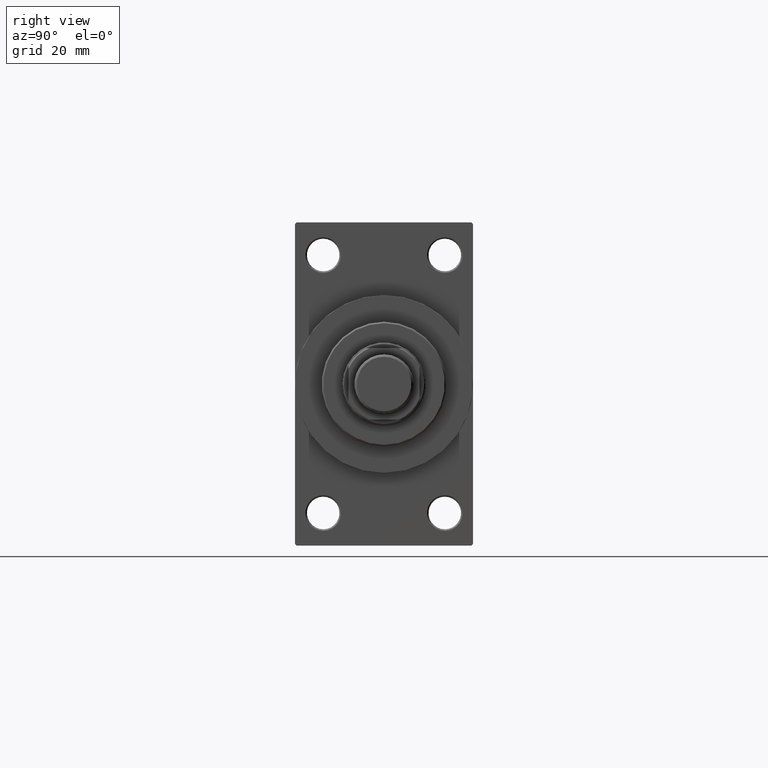
[diagram: clean part render]
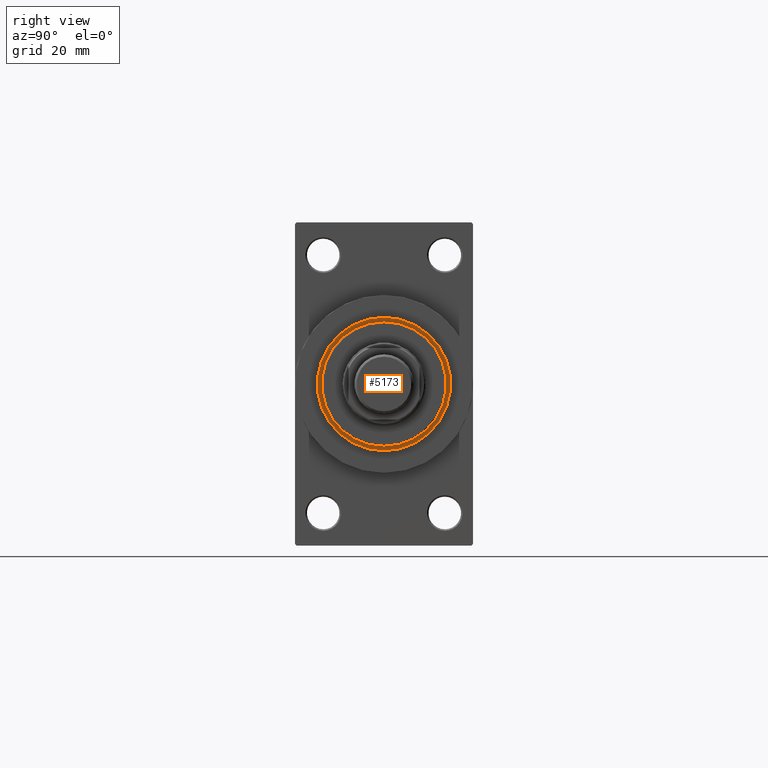
[diagram: same view with one face highlighted and labeled with its STEP entity id]
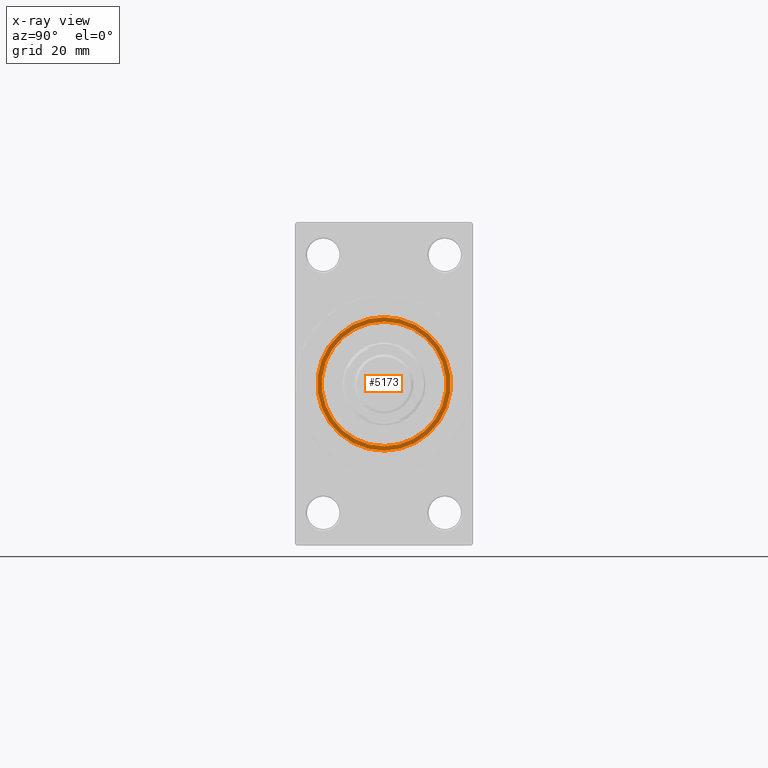
[diagram: x-ray of the same camera — body ghosted, the highlighted face saturated]
A machine part, right view. The second image highlights one B-rep face of the part: STEP entity #5173.
The next image is the same camera in x-ray: the body ghosted, the highlighted face saturated — about 0% of this face is hidden behind the body in this view.
In plain terms, the highlighted planar face has unit normal (1, -0, -0).
Its self-contained STEP definition (entity closure, byte-faithful):
#749 = EDGE_CURVE ( 'NONE', #41775, #42301, #6179, .T. ) ;
#1861 = CIRCLE ( 'NONE', #14945, 22.50000000000000355 ) ;
#5173 = ADVANCED_FACE ( 'NONE', ( #6198, #20892 ), #17293, .T. ) ;
#5519 = ORIENTED_EDGE ( 'NONE', *, *, #10697, .F. ) ;
#6179 = CIRCLE ( 'NONE', #10039, 21.00000000000000000 ) ;
#6198 = FACE_BOUND ( 'NONE', #41076, .T. ) ;
#6264 = DIRECTION ( 'NONE',  ( 1.000000000000000000, 0.000000000000000000, 0.000000000000000000 ) ) ;
#8879 = DIRECTION ( 'NONE',  ( 0.000000000000000000, 0.000000000000000000, 1.000000000000000000 ) ) ;
#10039 = AXIS2_PLACEMENT_3D ( 'NONE', #41461, #23343, #26260 ) ;
#10291 = CARTESIAN_POINT ( 'NONE',  ( 22.50000000000000355, 2.755455298081545172E-15, 43.25999999999999801 ) ) ;
#10697 = EDGE_CURVE ( 'NONE', #42301, #41775, #11766, .T. ) ;
#11718 = CARTESIAN_POINT ( 'NONE',  ( 21.00000000000000000, 2.571758278209441661E-15, 43.25999999999999801 ) ) ;
#11766 = CIRCLE ( 'NONE', #17153, 21.00000000000000000 ) ;
#11864 = CIRCLE ( 'NONE', #24186, 22.50000000000000355 ) ;
#13530 = EDGE_LOOP ( 'NONE', ( #43491, #22218 ) ) ;
#13562 = EDGE_CURVE ( 'NONE', #28320, #25230, #11864, .T. ) ;
#14945 = AXIS2_PLACEMENT_3D ( 'NONE', #23481, #37512, #38207 ) ;
#16906 = ORIENTED_EDGE ( 'NONE', *, *, #749, .F. ) ;
#17153 = AXIS2_PLACEMENT_3D ( 'NONE', #28708, #32563, #6264 ) ;
#17293 = PLANE ( 'NONE',  #25572 ) ;
#19947 = DIRECTION ( 'NONE',  ( 1.000000000000000000, 0.000000000000000000, -0.000000000000000000 ) ) ;
#20890 = DIRECTION ( 'NONE',  ( 1.000000000000000000, 0.000000000000000000, 0.000000000000000000 ) ) ;
#20892 = FACE_OUTER_BOUND ( 'NONE', #13530, .T. ) ;
#21717 = CARTESIAN_POINT ( 'NONE',  ( -21.00000000000000000, 0.000000000000000000, 43.25999999999999801 ) ) ;
#22156 = EDGE_CURVE ( 'NONE', #25230, #28320, #1861, .T. ) ;
#22218 = ORIENTED_EDGE ( 'NONE', *, *, #13562, .T. ) ;
#22596 = CARTESIAN_POINT ( 'NONE',  ( -22.50000000000000355, 0.000000000000000000, 43.25999999999999801 ) ) ;
#23343 = DIRECTION ( 'NONE',  ( 0.000000000000000000, 0.000000000000000000, 1.000000000000000000 ) ) ;
#23481 = CARTESIAN_POINT ( 'NONE',  ( 0.000000000000000000, 0.000000000000000000, 43.25999999999999801 ) ) ;
#24186 = AXIS2_PLACEMENT_3D ( 'NONE', #38782, #39023, #20890 ) ;
#25230 = VERTEX_POINT ( 'NONE', #22596 ) ;
#25572 = AXIS2_PLACEMENT_3D ( 'NONE', #28399, #8879, #19947 ) ;
#26260 = DIRECTION ( 'NONE',  ( 1.000000000000000000, 0.000000000000000000, 0.000000000000000000 ) ) ;
#28320 = VERTEX_POINT ( 'NONE', #10291 ) ;
#28399 = CARTESIAN_POINT ( 'NONE',  ( 0.000000000000000000, 0.000000000000000000, 43.25999999999999801 ) ) ;
#28708 = CARTESIAN_POINT ( 'NONE',  ( 0.000000000000000000, 0.000000000000000000, 43.25999999999999801 ) ) ;
#32563 = DIRECTION ( 'NONE',  ( 0.000000000000000000, 0.000000000000000000, 1.000000000000000000 ) ) ;
#37512 = DIRECTION ( 'NONE',  ( 0.000000000000000000, 0.000000000000000000, 1.000000000000000000 ) ) ;
#38207 = DIRECTION ( 'NONE',  ( 1.000000000000000000, 0.000000000000000000, 0.000000000000000000 ) ) ;
#38782 = CARTESIAN_POINT ( 'NONE',  ( 0.000000000000000000, 0.000000000000000000, 43.25999999999999801 ) ) ;
#39023 = DIRECTION ( 'NONE',  ( 0.000000000000000000, 0.000000000000000000, 1.000000000000000000 ) ) ;
#41076 = EDGE_LOOP ( 'NONE', ( #5519, #16906 ) ) ;
#41461 = CARTESIAN_POINT ( 'NONE',  ( 0.000000000000000000, 0.000000000000000000, 43.25999999999999801 ) ) ;
#41775 = VERTEX_POINT ( 'NONE', #11718 ) ;
#42301 = VERTEX_POINT ( 'NONE', #21717 ) ;
#43491 = ORIENTED_EDGE ( 'NONE', *, *, #22156, .T. ) ;